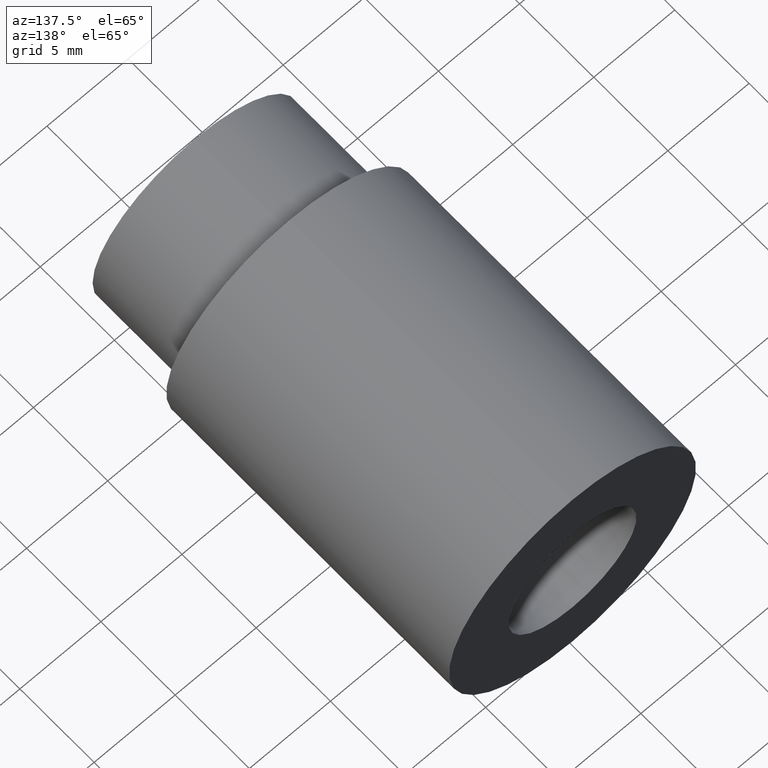
[diagram: clean part render]
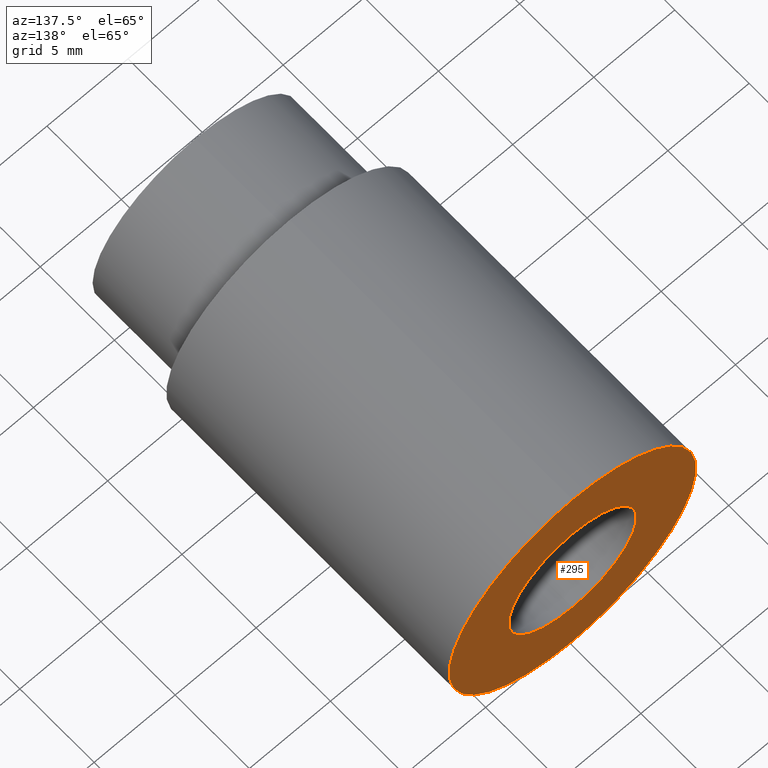
[diagram: same view with one face highlighted and labeled with its STEP entity id]
A machine part, auxiliary view. The second image highlights one B-rep face of the part: STEP entity #295.
In plain terms, the highlighted planar face has unit normal (0, -1, -0).
Its self-contained STEP definition (entity closure, byte-faithful):
#14 = AXIS2_PLACEMENT_3D ( 'NONE', #120, #101, #139 ) ;
#18 = EDGE_CURVE ( 'NONE', #142, #181, #195, .T. ) ;
#23 = EDGE_CURVE ( 'NONE', #249, #143, #265, .T. ) ;
#29 = CARTESIAN_POINT ( 'NONE',  ( 0.0000000000000000000, 1.000000000000000000, -0.1555000000000000000 ) ) ;
#33 = PLANE ( 'NONE',  #14 ) ;
#34 = DIRECTION ( 'NONE',  ( 0.0000000000000000000, 0.0000000000000000000, -1.000000000000000000 ) ) ;
#48 = CARTESIAN_POINT ( 'NONE',  ( 1.904325772674134300E-017, 1.000000000000000000, 0.1555000000000000000 ) ) ;
#68 = CARTESIAN_POINT ( 'NONE',  ( 0.0000000000000000000, 1.000000000000000000, 0.0000000000000000000 ) ) ;
#70 = DIRECTION ( 'NONE',  ( 0.0000000000000000000, -1.000000000000000000, 0.0000000000000000000 ) ) ;
#79 = CARTESIAN_POINT ( 'NONE',  ( 0.0000000000000000000, 1.000000000000000000, 0.0000000000000000000 ) ) ;
#80 = DIRECTION ( 'NONE',  ( 0.0000000000000000000, 0.0000000000000000000, -1.000000000000000000 ) ) ;
#81 = DIRECTION ( 'NONE',  ( 0.0000000000000000000, 0.0000000000000000000, -1.000000000000000000 ) ) ;
#92 = DIRECTION ( 'NONE',  ( 0.0000000000000000000, -1.000000000000000000, 0.0000000000000000000 ) ) ;
#94 = CARTESIAN_POINT ( 'NONE',  ( 0.0000000000000000000, 1.000000000000000000, 0.0000000000000000000 ) ) ;
#100 = DIRECTION ( 'NONE',  ( -0.0000000000000000000, -1.000000000000000000, -0.0000000000000000000 ) ) ;
#101 = DIRECTION ( 'NONE',  ( 0.0000000000000000000, -1.000000000000000000, -0.0000000000000000000 ) ) ;
#108 = CARTESIAN_POINT ( 'NONE',  ( 0.0000000000000000000, 1.000000000000000000, 0.0000000000000000000 ) ) ;
#111 = CARTESIAN_POINT ( 'NONE',  ( 3.673940397442058900E-017, 1.000000000000000000, 0.2999999999999999900 ) ) ;
#114 = DIRECTION ( 'NONE',  ( 0.0000000000000000000, 0.0000000000000000000, -1.000000000000000000 ) ) ;
#120 = CARTESIAN_POINT ( 'NONE',  ( -0.2999999999999999900, 1.000000000000000000, 0.0000000000000000000 ) ) ;
#122 = CARTESIAN_POINT ( 'NONE',  ( 0.0000000000000000000, 1.000000000000000000, -0.2999999999999999900 ) ) ;
#139 = DIRECTION ( 'NONE',  ( 0.0000000000000000000, 0.0000000000000000000, -1.000000000000000000 ) ) ;
#140 = DIRECTION ( 'NONE',  ( -0.0000000000000000000, -1.000000000000000000, -0.0000000000000000000 ) ) ;
#142 = VERTEX_POINT ( 'NONE', #122 ) ;
#143 = VERTEX_POINT ( 'NONE', #29 ) ;
#147 = EDGE_LOOP ( 'NONE', ( #231, #255 ) ) ;
#178 = FACE_OUTER_BOUND ( 'NONE', #287, .T. ) ;
#181 = VERTEX_POINT ( 'NONE', #111 ) ;
#195 = CIRCLE ( 'NONE', #281, 0.2999999999999999900 ) ;
#209 = AXIS2_PLACEMENT_3D ( 'NONE', #94, #140, #114 ) ;
#210 = AXIS2_PLACEMENT_3D ( 'NONE', #79, #70, #34 ) ;
#216 = CIRCLE ( 'NONE', #209, 0.2999999999999999900 ) ;
#222 = CIRCLE ( 'NONE', #210, 0.1555000000000000000 ) ;
#231 = ORIENTED_EDGE ( 'NONE', *, *, #277, .T. ) ;
#240 = ORIENTED_EDGE ( 'NONE', *, *, #276, .F. ) ;
#243 = ORIENTED_EDGE ( 'NONE', *, *, #18, .F. ) ;
#249 = VERTEX_POINT ( 'NONE', #48 ) ;
#255 = ORIENTED_EDGE ( 'NONE', *, *, #23, .T. ) ;
#264 = FACE_BOUND ( 'NONE', #147, .T. ) ;
#265 = CIRCLE ( 'NONE', #283, 0.1555000000000000000 ) ;
#276 = EDGE_CURVE ( 'NONE', #181, #142, #216, .T. ) ;
#277 = EDGE_CURVE ( 'NONE', #143, #249, #222, .T. ) ;
#281 = AXIS2_PLACEMENT_3D ( 'NONE', #68, #100, #80 ) ;
#283 = AXIS2_PLACEMENT_3D ( 'NONE', #108, #92, #81 ) ;
#287 = EDGE_LOOP ( 'NONE', ( #243, #240 ) ) ;
#295 = ADVANCED_FACE ( 'NONE', ( #264, #178 ), #33, .F. ) ;